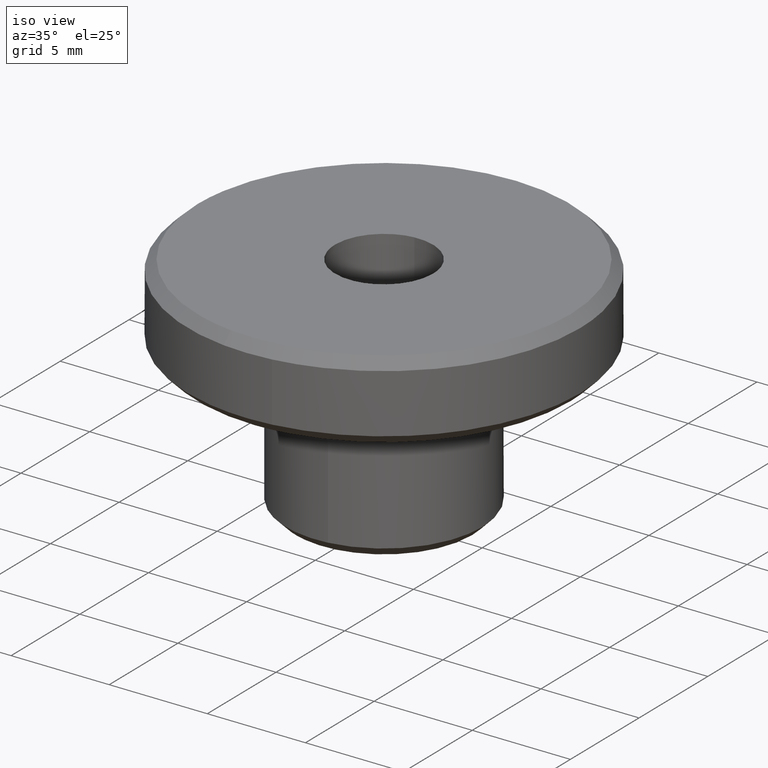
[diagram: clean part render]
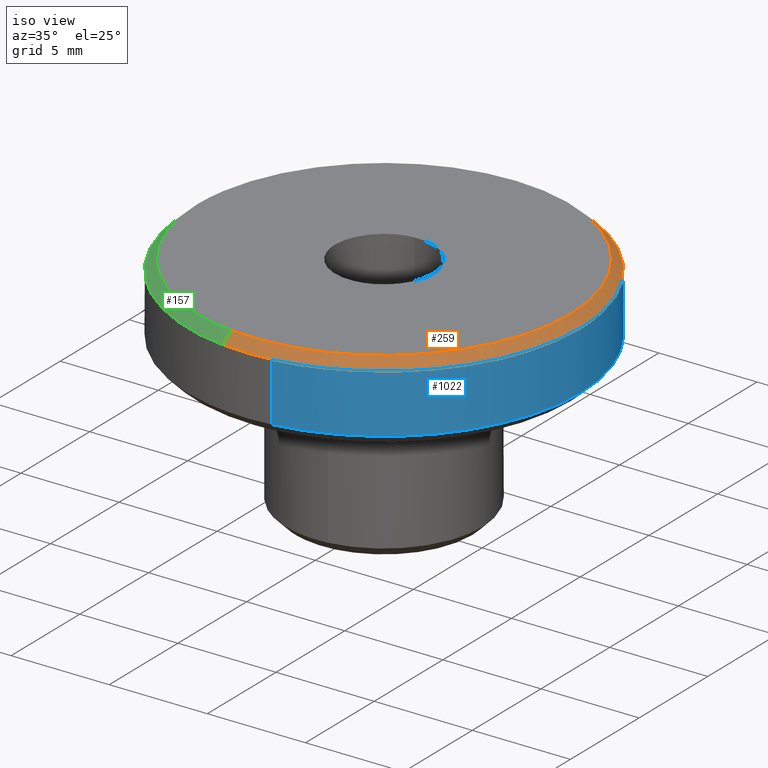
[diagram: same view with three faces highlighted in distinct colors, each labeled with its STEP entity id]
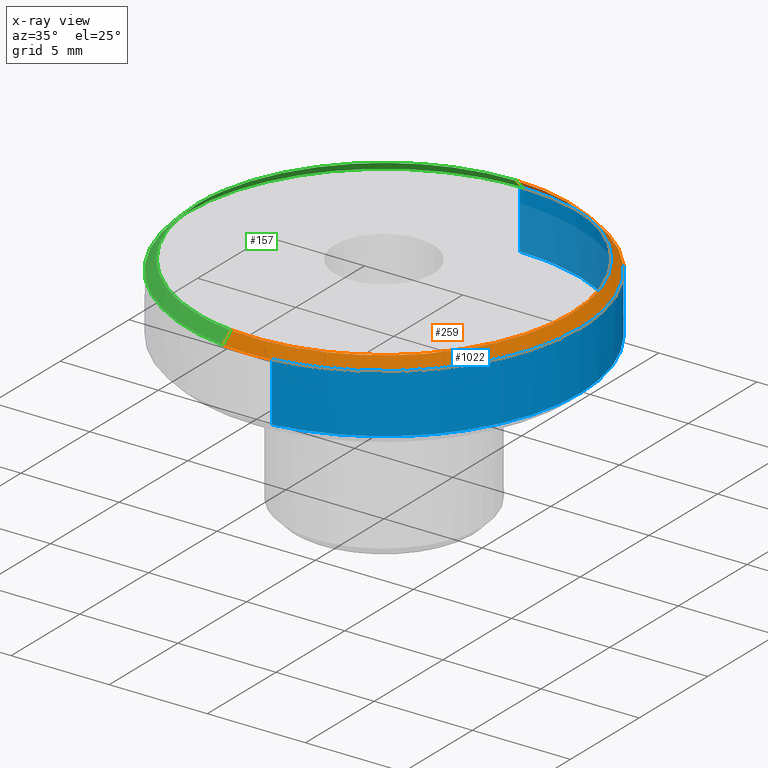
[diagram: x-ray of the same camera — body ghosted, the three highlighted faces saturated]
A machine part, iso view with three faces highlighted in distinct colors.
The next image is the same camera in x-ray (body ghosted, the three faces saturated) — at least one of them is partly hidden behind the body in this view.
Their STEP definitions:

[orange] entity #259 — the highlighted face is a freeform B-spline surface patch.
#62=CARTESIAN_POINT('',(-1.241280020808118,-9.922662138255406,10.999999999998760));
#63=VERTEX_POINT('',#62);
#79=CARTESIAN_POINT('',(-1.179216019775669,-9.426529031342632,11.499999999997810));
#80=VERTEX_POINT('',#79);
#81=CARTESIAN_POINT('',(-1.179216019775669,-9.426529031342632,11.499999999997810));
#82=CARTESIAN_POINT('',(-1.241280020808118,-9.922662138255406,10.999999999998760));
#83=QUASI_UNIFORM_CURVE('',1,(#81,#82),.UNSPECIFIED.,.F.,.U.);
#84=EDGE_CURVE('',#80,#63,#83,.T.);
#101=CARTESIAN_POINT('',(0.082902087252669,9.499638269111919,11.499999999997520));
#102=VERTEX_POINT('',#101);
#118=CARTESIAN_POINT('',(0.087265355013844,9.999619230645543,10.999999999995900));
#119=VERTEX_POINT('',#118);
#120=CARTESIAN_POINT('',(0.082902087252669,9.499638269111919,11.499999999997520));
#121=CARTESIAN_POINT('',(0.087265355013844,9.999619230645543,10.999999999995900));
#122=QUASI_UNIFORM_CURVE('',1,(#120,#121),.UNSPECIFIED.,.F.,.U.);
#123=EDGE_CURVE('',#102,#119,#122,.T.);
#158=CARTESIAN_POINT('',(0.082793005540822,9.487138745071265,11.512499999999999));
#159=CARTESIAN_POINT('',(9.569931750612087,9.404345739530443,11.512500000000003));
#160=CARTESIAN_POINT('',(9.487138745071265,-0.082793005540822,11.512499999999999));
#161=CARTESIAN_POINT('',(9.404345739530443,-9.569931750612087,11.512500000000003));
#162=CARTESIAN_POINT('',(-0.082793005540822,-9.487138745071265,11.512499999999999));
#163=CARTESIAN_POINT('',(-0.632343383115668,-9.482342891581807,11.512499999999999));
#164=CARTESIAN_POINT('',(-1.177664419732374,-9.414125703669738,11.512499999999999));
#165=CARTESIAN_POINT('',(0.087377163719812,10.012431242780970,10.987187499999999));
#166=CARTESIAN_POINT('',(10.099808406500784,9.925054079061162,10.987187499999997));
#167=CARTESIAN_POINT('',(10.012431242780970,-0.087377163719812,10.987187499999999));
#168=CARTESIAN_POINT('',(9.925054079061162,-10.099808406500784,10.987187499999997));
#169=CARTESIAN_POINT('',(-0.087377163719812,-10.012431242780970,10.987187499999999));
#170=CARTESIAN_POINT('',(-0.667355544743388,-10.007369848128283,10.987187499999994));
#171=CARTESIAN_POINT('',(-1.242870410824942,-9.935375549120030,10.987187499999999));
#179=(BOUNDED_SURFACE()B_SPLINE_SURFACE(2,1,((#158,#165),(#159,#166),(#160,#167),(#161,#168),(#162,#169),(#163,#170),(#164,#171)),.UNSPECIFIED.,.F.,.F.,.U.)B_SPLINE_SURFACE_WITH_KNOTS((3,2,2,3),(2,2),(0.0,16.589770939995429,33.179541879990850,34.506723555190483),(0.0,1.0),.UNSPECIFIED.)GEOMETRIC_REPRESENTATION_ITEM()RATIONAL_B_SPLINE_SURFACE(((1.0,1.0),(0.707106781186548,0.707106781186548),(1.0,1.0),(0.707106781186548,0.707106781186548),(1.0,1.0),(0.976568542494924,0.976568542494924),(0.956886118190660,0.956886118190660)))REPRESENTATION_ITEM('')SURFACE());
#180=CARTESIAN_POINT('',(1.241278290749142,-9.922662354676380,10.999999999999980));
#181=VERTEX_POINT('',#180);
#182=CARTESIAN_POINT('',(1.241278290749142,-9.922662354676380,10.999999999999975));
#183=CARTESIAN_POINT('',(0.623048400184220,-10.0,11.000000000000004));
#184=CARTESIAN_POINT('',(0.0,-10.0,11.0));
#185=CARTESIAN_POINT('',(-0.623049275344735,-9.999999999999998,10.999999999999995));
#186=CARTESIAN_POINT('',(-1.241280020808118,-9.922662138255406,10.999999999998758));
#194=(BOUNDED_CURVE()B_SPLINE_CURVE(2,(#182,#183,#184,#185,#186),.UNSPECIFIED.,.F.,.U.)B_SPLINE_CURVE_WITH_KNOTS((3,2,3),(0.728526100433277,0.750000000000000,0.771473928971030),.UNSPECIFIED.)CURVE()GEOMETRIC_REPRESENTATION_ITEM()RATIONAL_B_SPLINE_CURVE((0.954005487336481,0.974841761741703,1.0,0.974841727292414,0.954005430274080))REPRESENTATION_ITEM(''));
#195=EDGE_CURVE('',#181,#63,#194,.T.);
#196=ORIENTED_EDGE('',*,*,#195,.F.);
#197=CARTESIAN_POINT('',(10.0,0.0,11.0));
#198=VERTEX_POINT('',#197);
#199=CARTESIAN_POINT('',(10.0,0.0,11.0));
#200=CARTESIAN_POINT('',(9.999999999999998,-8.826987552511923,11.0));
#201=CARTESIAN_POINT('',(1.241278290749142,-9.922662354676380,10.999999999999975));
#209=(BOUNDED_CURVE()B_SPLINE_CURVE(2,(#199,#200,#201),.UNSPECIFIED.,.F.,.U.)B_SPLINE_CURVE_WITH_KNOTS((3,3),(0.500000000000000,0.728526100433277),.UNSPECIFIED.)CURVE()GEOMETRIC_REPRESENTATION_ITEM()RATIONAL_B_SPLINE_CURVE((1.0,0.732265019444844,0.954005487336481))REPRESENTATION_ITEM(''));
#210=EDGE_CURVE('',#198,#181,#209,.T.);
#211=ORIENTED_EDGE('',*,*,#210,.F.);
#212=CARTESIAN_POINT('',(0.087265355013844,9.999619230645543,10.999999999995900));
#213=CARTESIAN_POINT('',(10.000000000000002,9.913112105890164,11.0));
#214=CARTESIAN_POINT('',(10.0,0.0,11.0));
#222=(BOUNDED_CURVE()B_SPLINE_CURVE(2,(#212,#213,#214),.UNSPECIFIED.,.F.,.U.)B_SPLINE_CURVE_WITH_KNOTS((3,3),(0.251539894336047,0.500000000000000),.UNSPECIFIED.)CURVE()GEOMETRIC_REPRESENTATION_ITEM()RATIONAL_B_SPLINE_CURVE((0.996414028097954,0.708910879621417,1.0))REPRESENTATION_ITEM(''));
#223=EDGE_CURVE('',#119,#198,#222,.T.);
#224=ORIENTED_EDGE('',*,*,#223,.F.);
#225=ORIENTED_EDGE('',*,*,#123,.F.);
#226=CARTESIAN_POINT('',(9.500000000000000,0.0,11.500000000000000));
#227=VERTEX_POINT('',#226);
#228=CARTESIAN_POINT('',(9.500000000000000,0.0,11.500000000000000));
#229=CARTESIAN_POINT('',(9.499999999999998,9.417456500616419,11.500000000000000));
#230=CARTESIAN_POINT('',(0.082902087252669,9.499638269111919,11.499999999997522));
#238=(BOUNDED_CURVE()B_SPLINE_CURVE(2,(#228,#229,#230),.UNSPECIFIED.,.F.,.U.)B_SPLINE_CURVE_WITH_KNOTS((3,3),(0.0,0.248460105664342),.UNSPECIFIED.)CURVE()GEOMETRIC_REPRESENTATION_ITEM()RATIONAL_B_SPLINE_CURVE((1.0,0.708910879620962,0.996414028098853))REPRESENTATION_ITEM(''));
#239=EDGE_CURVE('',#227,#102,#238,.T.);
#240=ORIENTED_EDGE('',*,*,#239,.F.);
#241=CARTESIAN_POINT('',(-1.179216019775669,-9.426529031342632,11.499999999997808));
#242=CARTESIAN_POINT('',(-0.591896811585418,-9.500000000000000,11.500000000000002));
#243=CARTESIAN_POINT('',(0.0,-9.500000000000000,11.500000000000000));
#244=CARTESIAN_POINT('',(9.500000000000000,-9.500000000000000,11.500000000000000));
#245=CARTESIAN_POINT('',(9.500000000000000,0.0,11.500000000000000));
#253=(BOUNDED_CURVE()B_SPLINE_CURVE(2,(#241,#242,#243,#244,#245),.UNSPECIFIED.,.F.,.U.)B_SPLINE_CURVE_WITH_KNOTS((3,2,3),(0.728526071028690,0.750000000000000,1.0),.UNSPECIFIED.)CURVE()GEOMETRIC_REPRESENTATION_ITEM()RATIONAL_B_SPLINE_CURVE((0.954005430273537,0.974841727292086,1.0,0.707106781186548,1.0))REPRESENTATION_ITEM(''));
#254=EDGE_CURVE('',#80,#227,#253,.T.);
#255=ORIENTED_EDGE('',*,*,#254,.F.);
#256=ORIENTED_EDGE('',*,*,#84,.T.);
#257=EDGE_LOOP('',(#196,#211,#224,#225,#240,#255,#256));
#258=FACE_OUTER_BOUND('',#257,.T.);
#259=ADVANCED_FACE('',(#258),#179,.T.);

[blue] entity #1022 — the highlighted face is a freeform B-spline surface patch.
#118=CARTESIAN_POINT('',(0.087265355013844,9.999619230645543,10.999999999995900));
#119=VERTEX_POINT('',#118);
#125=CARTESIAN_POINT('',(-0.087258805515289,9.999619287793767,11.000000000000030));
#126=VERTEX_POINT('',#125);
#127=CARTESIAN_POINT('',(-0.087258805515289,9.999619287793767,11.000000000000032));
#128=CARTESIAN_POINT('',(-0.043630233285768,10.000000000000002,11.000000000000002));
#129=CARTESIAN_POINT('',(0.0,10.0,11.0));
#130=CARTESIAN_POINT('',(0.043633508237091,10.0,11.000000000000002));
#131=CARTESIAN_POINT('',(0.087265355013844,9.999619230645543,10.999999999995904));
#139=(BOUNDED_CURVE()B_SPLINE_CURVE(2,(#127,#128,#129,#130,#131),.UNSPECIFIED.,.F.,.U.)B_SPLINE_CURVE_WITH_KNOTS((3,2,3),(0.248460221033578,0.250000000000000,0.251539894336047),.UNSPECIFIED.)CURVE()GEOMETRIC_REPRESENTATION_ITEM()RATIONAL_B_SPLINE_CURVE((0.996414295095714,0.998196036729054,1.0,0.998195901565131,0.996414028097954))REPRESENTATION_ITEM(''));
#140=EDGE_CURVE('',#126,#119,#139,.T.);
#180=CARTESIAN_POINT('',(1.241278290749142,-9.922662354676380,10.999999999999980));
#181=VERTEX_POINT('',#180);
#197=CARTESIAN_POINT('',(10.0,0.0,11.0));
#198=VERTEX_POINT('',#197);
#199=CARTESIAN_POINT('',(10.0,0.0,11.0));
#200=CARTESIAN_POINT('',(9.999999999999998,-8.826987552511923,11.0));
#201=CARTESIAN_POINT('',(1.241278290749142,-9.922662354676380,10.999999999999975));
#209=(BOUNDED_CURVE()B_SPLINE_CURVE(2,(#199,#200,#201),.UNSPECIFIED.,.F.,.U.)B_SPLINE_CURVE_WITH_KNOTS((3,3),(0.500000000000000,0.728526100433277),.UNSPECIFIED.)CURVE()GEOMETRIC_REPRESENTATION_ITEM()RATIONAL_B_SPLINE_CURVE((1.0,0.732265019444844,0.954005487336481))REPRESENTATION_ITEM(''));
#210=EDGE_CURVE('',#198,#181,#209,.T.);
#212=CARTESIAN_POINT('',(0.087265355013844,9.999619230645543,10.999999999995900));
#213=CARTESIAN_POINT('',(10.000000000000002,9.913112105890164,11.0));
#214=CARTESIAN_POINT('',(10.0,0.0,11.0));
#222=(BOUNDED_CURVE()B_SPLINE_CURVE(2,(#212,#213,#214),.UNSPECIFIED.,.F.,.U.)B_SPLINE_CURVE_WITH_KNOTS((3,3),(0.251539894336047,0.500000000000000),.UNSPECIFIED.)CURVE()GEOMETRIC_REPRESENTATION_ITEM()RATIONAL_B_SPLINE_CURVE((0.996414028097954,0.708910879621417,1.0))REPRESENTATION_ITEM(''));
#223=EDGE_CURVE('',#119,#198,#222,.T.);
#361=CARTESIAN_POINT('',(-0.087258337325771,9.999619291878959,8.0));
#362=VERTEX_POINT('',#361);
#376=CARTESIAN_POINT('',(10.0,0.0,8.0));
#377=VERTEX_POINT('',#376);
#378=CARTESIAN_POINT('',(10.0,0.0,8.0));
#379=CARTESIAN_POINT('',(10.000000000000002,10.000000000000002,8.0));
#380=CARTESIAN_POINT('',(0.0,10.0,8.0));
#381=CARTESIAN_POINT('',(-0.043629999177642,10.000000000000002,8.0));
#382=CARTESIAN_POINT('',(-0.087258337325771,9.999619291878959,8.0));
#390=(BOUNDED_CURVE()B_SPLINE_CURVE(2,(#378,#379,#380,#381,#382),.UNSPECIFIED.,.F.,.U.)B_SPLINE_CURVE_WITH_KNOTS((3,2,3),(0.500000000000000,0.750000000000000,0.751539770719286),.UNSPECIFIED.)CURVE()GEOMETRIC_REPRESENTATION_ITEM()RATIONAL_B_SPLINE_CURVE((1.0,0.707106781186548,1.0,0.998196046391175,0.996414314181917))REPRESENTATION_ITEM(''));
#391=EDGE_CURVE('',#377,#362,#390,.T.);
#393=CARTESIAN_POINT('',(8.188661127107629,-5.739845724877739,8.000000000000071));
#394=VERTEX_POINT('',#393);
#395=CARTESIAN_POINT('',(8.188661127107629,-5.739845724877739,8.000000000000071));
#396=CARTESIAN_POINT('',(10.0,-3.155727452816520,8.0));
#397=CARTESIAN_POINT('',(10.0,0.0,8.0));
#405=(BOUNDED_CURVE()B_SPLINE_CURVE(2,(#395,#396,#397),.UNSPECIFIED.,.F.,.U.)B_SPLINE_CURVE_WITH_KNOTS((3,3),(0.401326273797088,0.500000000000000),.UNSPECIFIED.)CURVE()GEOMETRIC_REPRESENTATION_ITEM()RATIONAL_B_SPLINE_CURVE((0.860049271925853,0.884396538880448,1.0))REPRESENTATION_ITEM(''));
#406=EDGE_CURVE('',#394,#377,#405,.T.);
#444=CARTESIAN_POINT('',(1.241273483490002,-9.922662956038623,8.0));
#445=VERTEX_POINT('',#444);
#446=CARTESIAN_POINT('',(1.241273483490001,-9.922662956038623,8.0));
#447=CARTESIAN_POINT('',(5.642649241165045,-9.372073760067673,8.0));
#448=CARTESIAN_POINT('',(8.188661127107629,-5.739845724877739,8.000000000000071));
#456=(BOUNDED_CURVE()B_SPLINE_CURVE(2,(#446,#447,#448),.UNSPECIFIED.,.F.,.U.)B_SPLINE_CURVE_WITH_KNOTS((3,3),(0.271473817862368,0.401326273797089),.UNSPECIFIED.)CURVE()GEOMETRIC_REPRESENTATION_ITEM()RATIONAL_B_SPLINE_CURVE((0.954005645893153,0.828008803495066,0.860049271925853))REPRESENTATION_ITEM(''));
#457=EDGE_CURVE('',#445,#394,#456,.T.);
#986=CARTESIAN_POINT('',(1.241280020798293,-9.922662138255385,7.925000000000000));
#987=CARTESIAN_POINT('',(10.077328305024446,-8.817312581332210,7.925000000000001));
#988=CARTESIAN_POINT('',(9.999619230641709,0.087265354983739,7.925000000000000));
#989=CARTESIAN_POINT('',(9.912353875657971,10.086884585625448,7.925000000000000));
#990=CARTESIAN_POINT('',(-0.087265354983739,9.999619230641709,7.925000000000000));
#991=CARTESIAN_POINT('',(1.241280020798293,-9.922662138255385,11.076875000000005));
#992=CARTESIAN_POINT('',(10.077328305024446,-8.817312581332210,11.076874999999999));
#993=CARTESIAN_POINT('',(9.999619230641709,0.087265354983739,11.076874999999999));
#994=CARTESIAN_POINT('',(9.912353875657971,10.086884585625448,11.076875000000001));
#995=CARTESIAN_POINT('',(-0.087265354983739,9.999619230641709,11.076874999999999));
#1003=(BOUNDED_SURFACE()B_SPLINE_SURFACE(2,1,((#986,#991),(#987,#992),(#988,#993),(#989,#994),(#990,#995)),.UNSPECIFIED.,.F.,.F.,.U.)B_SPLINE_SURFACE_WITH_KNOTS((3,2,3),(2,2),(0.0,15.243059095329890,31.811601590253691),(0.0,3.151875000000001),.UNSPECIFIED.)GEOMETRIC_REPRESENTATION_ITEM()RATIONAL_B_SPLINE_SURFACE(((0.956886118190660,0.956886118190660),(0.730538238691624,0.730538238691624),(1.0,1.0),(0.707106781186548,0.707106781186548),(1.0,1.0)))REPRESENTATION_ITEM('')SURFACE());
#1004=ORIENTED_EDGE('',*,*,#210,.T.);
#1005=CARTESIAN_POINT('',(1.241273483490002,-9.922662956038623,8.0));
#1006=CARTESIAN_POINT('',(1.241278290749142,-9.922662354676380,10.999999999999980));
#1007=QUASI_UNIFORM_CURVE('',1,(#1005,#1006),.UNSPECIFIED.,.F.,.U.);
#1008=EDGE_CURVE('',#445,#181,#1007,.T.);
#1009=ORIENTED_EDGE('',*,*,#1008,.F.);
#1010=ORIENTED_EDGE('',*,*,#457,.T.);
#1011=ORIENTED_EDGE('',*,*,#406,.T.);
#1012=ORIENTED_EDGE('',*,*,#391,.T.);
#1013=CARTESIAN_POINT('',(-0.087258337325771,9.999619291878959,8.0));
#1014=CARTESIAN_POINT('',(-0.087258805515289,9.999619287793767,11.000000000000030));
#1015=QUASI_UNIFORM_CURVE('',1,(#1013,#1014),.UNSPECIFIED.,.F.,.U.);
#1016=EDGE_CURVE('',#362,#126,#1015,.T.);
#1017=ORIENTED_EDGE('',*,*,#1016,.T.);
#1018=ORIENTED_EDGE('',*,*,#140,.T.);
#1019=ORIENTED_EDGE('',*,*,#223,.T.);
#1020=EDGE_LOOP('',(#1004,#1009,#1010,#1011,#1012,#1017,#1018,#1019));
#1021=FACE_OUTER_BOUND('',#1020,.T.);
#1022=ADVANCED_FACE('',(#1021),#1003,.T.);

[green] entity #157 — the highlighted face is a freeform B-spline surface patch.
#44=CARTESIAN_POINT('',(-1.177664419732374,-9.414125703669738,11.512499999999999));
#45=CARTESIAN_POINT('',(-9.560865229391885,-8.365425311538882,11.512500000000003));
#46=CARTESIAN_POINT('',(-9.487138745071265,0.082793005540822,11.512499999999999));
#47=CARTESIAN_POINT('',(-9.404345739530443,9.569931750612087,11.512500000000003));
#48=CARTESIAN_POINT('',(0.082793005540822,9.487138745071265,11.512499999999999));
#49=CARTESIAN_POINT('',(-1.242870410824942,-9.935375549120030,10.987187499999999));
#50=CARTESIAN_POINT('',(-10.090239881915261,-8.828609763077045,10.987187499999997));
#51=CARTESIAN_POINT('',(-10.012431242780970,0.087377163719812,10.987187499999999));
#52=CARTESIAN_POINT('',(-9.925054079061162,10.099808406500784,10.987187499999997));
#53=CARTESIAN_POINT('',(0.087377163719812,10.012431242780970,10.987187499999999));
#61=(BOUNDED_SURFACE()B_SPLINE_SURFACE(2,1,((#44,#49),(#45,#50),(#46,#51),(#47,#52),(#48,#53)),.UNSPECIFIED.,.F.,.F.,.U.)B_SPLINE_SURFACE_WITH_KNOTS((3,2,3),(2,2),(0.0,15.262589264795791,31.852360204791211),(0.0,1.0),.UNSPECIFIED.)GEOMETRIC_REPRESENTATION_ITEM()RATIONAL_B_SPLINE_SURFACE(((0.956886118190660,0.956886118190660),(0.730538238691624,0.730538238691624),(1.0,1.0),(0.707106781186548,0.707106781186548),(1.0,1.0)))REPRESENTATION_ITEM('')SURFACE());
#62=CARTESIAN_POINT('',(-1.241280020808118,-9.922662138255406,10.999999999998760));
#63=VERTEX_POINT('',#62);
#64=CARTESIAN_POINT('',(-10.0,0.0,11.0));
#65=VERTEX_POINT('',#64);
#66=CARTESIAN_POINT('',(-1.241280020808118,-9.922662138255406,10.999999999998757));
#67=CARTESIAN_POINT('',(-10.0,-8.826986001484947,11.0));
#68=CARTESIAN_POINT('',(-10.0,0.0,11.0));
#76=(BOUNDED_CURVE()B_SPLINE_CURVE(2,(#66,#67,#68),.UNSPECIFIED.,.F.,.U.)B_SPLINE_CURVE_WITH_KNOTS((3,3),(0.771473928971030,1.0),.UNSPECIFIED.)CURVE()GEOMETRIC_REPRESENTATION_ITEM()RATIONAL_B_SPLINE_CURVE((0.954005430274081,0.732265053894133,1.0))REPRESENTATION_ITEM(''));
#77=EDGE_CURVE('',#63,#65,#76,.T.);
#78=ORIENTED_EDGE('',*,*,#77,.F.);
#79=CARTESIAN_POINT('',(-1.179216019775669,-9.426529031342632,11.499999999997810));
#80=VERTEX_POINT('',#79);
#81=CARTESIAN_POINT('',(-1.179216019775669,-9.426529031342632,11.499999999997810));
#82=CARTESIAN_POINT('',(-1.241280020808118,-9.922662138255406,10.999999999998760));
#83=QUASI_UNIFORM_CURVE('',1,(#81,#82),.UNSPECIFIED.,.F.,.U.);
#84=EDGE_CURVE('',#80,#63,#83,.T.);
#85=ORIENTED_EDGE('',*,*,#84,.F.);
#86=CARTESIAN_POINT('',(-9.500000000000000,0.0,11.500000000000000));
#87=VERTEX_POINT('',#86);
#88=CARTESIAN_POINT('',(-9.500000000000000,0.0,11.500000000000000));
#89=CARTESIAN_POINT('',(-9.500000000000000,-8.385636701396646,11.500000000000000));
#90=CARTESIAN_POINT('',(-1.179216019775669,-9.426529031342632,11.499999999997812));
#98=(BOUNDED_CURVE()B_SPLINE_CURVE(2,(#88,#89,#90),.UNSPECIFIED.,.F.,.U.)B_SPLINE_CURVE_WITH_KNOTS((3,3),(0.500000000000000,0.728526071028690),.UNSPECIFIED.)CURVE()GEOMETRIC_REPRESENTATION_ITEM()RATIONAL_B_SPLINE_CURVE((1.0,0.732265053894462,0.954005430273536))REPRESENTATION_ITEM(''));
#99=EDGE_CURVE('',#87,#80,#98,.T.);
#100=ORIENTED_EDGE('',*,*,#99,.F.);
#101=CARTESIAN_POINT('',(0.082902087252669,9.499638269111919,11.499999999997520));
#102=VERTEX_POINT('',#101);
#103=CARTESIAN_POINT('',(0.082902087252669,9.499638269111919,11.499999999997526));
#104=CARTESIAN_POINT('',(0.041451832814762,9.499999999999998,11.500000000000002));
#105=CARTESIAN_POINT('',(0.0,9.500000000000000,11.500000000000000));
#106=CARTESIAN_POINT('',(-9.500000000000000,9.500000000000000,11.500000000000000));
#107=CARTESIAN_POINT('',(-9.500000000000000,0.0,11.500000000000000));
#115=(BOUNDED_CURVE()B_SPLINE_CURVE(2,(#103,#104,#105,#106,#107),.UNSPECIFIED.,.F.,.U.)B_SPLINE_CURVE_WITH_KNOTS((3,2,3),(0.248460105664342,0.250000000000000,0.500000000000000),.UNSPECIFIED.)CURVE()GEOMETRIC_REPRESENTATION_ITEM()RATIONAL_B_SPLINE_CURVE((0.996414028098853,0.998195901565586,1.0,0.707106781186548,1.0))REPRESENTATION_ITEM(''));
#116=EDGE_CURVE('',#102,#87,#115,.T.);
#117=ORIENTED_EDGE('',*,*,#116,.F.);
#118=CARTESIAN_POINT('',(0.087265355013844,9.999619230645543,10.999999999995900));
#119=VERTEX_POINT('',#118);
#120=CARTESIAN_POINT('',(0.082902087252669,9.499638269111919,11.499999999997520));
#121=CARTESIAN_POINT('',(0.087265355013844,9.999619230645543,10.999999999995900));
#122=QUASI_UNIFORM_CURVE('',1,(#120,#121),.UNSPECIFIED.,.F.,.U.);
#123=EDGE_CURVE('',#102,#119,#122,.T.);
#124=ORIENTED_EDGE('',*,*,#123,.T.);
#125=CARTESIAN_POINT('',(-0.087258805515289,9.999619287793767,11.000000000000030));
#126=VERTEX_POINT('',#125);
#127=CARTESIAN_POINT('',(-0.087258805515289,9.999619287793767,11.000000000000032));
#128=CARTESIAN_POINT('',(-0.043630233285768,10.000000000000002,11.000000000000002));
#129=CARTESIAN_POINT('',(0.0,10.0,11.0));
#130=CARTESIAN_POINT('',(0.043633508237091,10.0,11.000000000000002));
#131=CARTESIAN_POINT('',(0.087265355013844,9.999619230645543,10.999999999995904));
#139=(BOUNDED_CURVE()B_SPLINE_CURVE(2,(#127,#128,#129,#130,#131),.UNSPECIFIED.,.F.,.U.)B_SPLINE_CURVE_WITH_KNOTS((3,2,3),(0.248460221033578,0.250000000000000,0.251539894336047),.UNSPECIFIED.)CURVE()GEOMETRIC_REPRESENTATION_ITEM()RATIONAL_B_SPLINE_CURVE((0.996414295095714,0.998196036729054,1.0,0.998195901565131,0.996414028097954))REPRESENTATION_ITEM(''));
#140=EDGE_CURVE('',#126,#119,#139,.T.);
#141=ORIENTED_EDGE('',*,*,#140,.F.);
#142=CARTESIAN_POINT('',(-10.0,0.0,11.0));
#143=CARTESIAN_POINT('',(-9.999999999999998,9.913118599007813,11.0));
#144=CARTESIAN_POINT('',(-0.087258805515289,9.999619287793767,11.000000000000032));
#152=(BOUNDED_CURVE()B_SPLINE_CURVE(2,(#142,#143,#144),.UNSPECIFIED.,.F.,.U.)B_SPLINE_CURVE_WITH_KNOTS((3,3),(0.0,0.248460221033578),.UNSPECIFIED.)CURVE()GEOMETRIC_REPRESENTATION_ITEM()RATIONAL_B_SPLINE_CURVE((1.0,0.708910744457494,0.996414295095714))REPRESENTATION_ITEM(''));
#153=EDGE_CURVE('',#65,#126,#152,.T.);
#154=ORIENTED_EDGE('',*,*,#153,.F.);
#155=EDGE_LOOP('',(#78,#85,#100,#117,#124,#141,#154));
#156=FACE_OUTER_BOUND('',#155,.T.);
#157=ADVANCED_FACE('',(#156),#61,.T.);